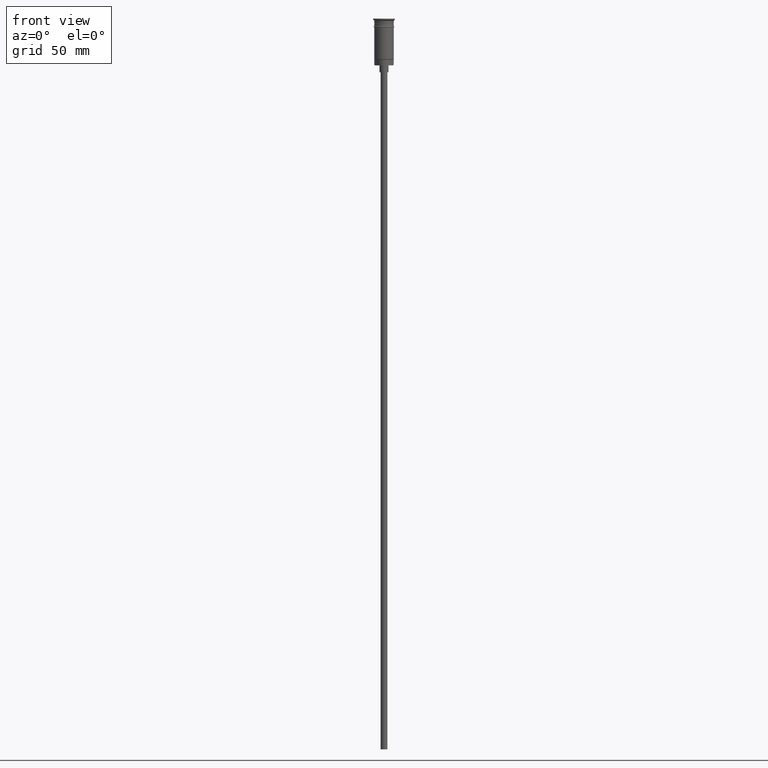
[diagram: clean part render]
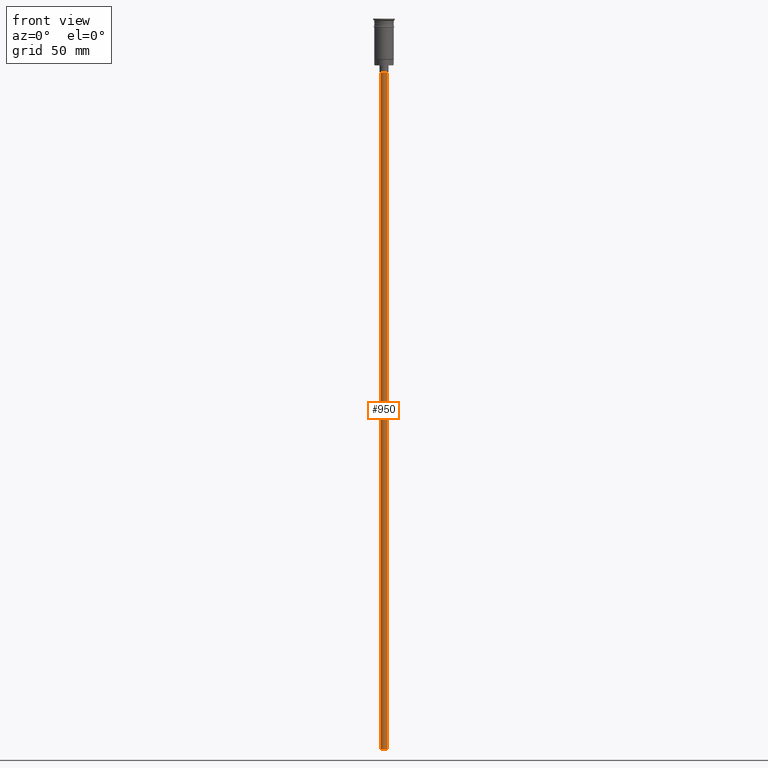
[diagram: same view with one face highlighted and labeled with its STEP entity id]
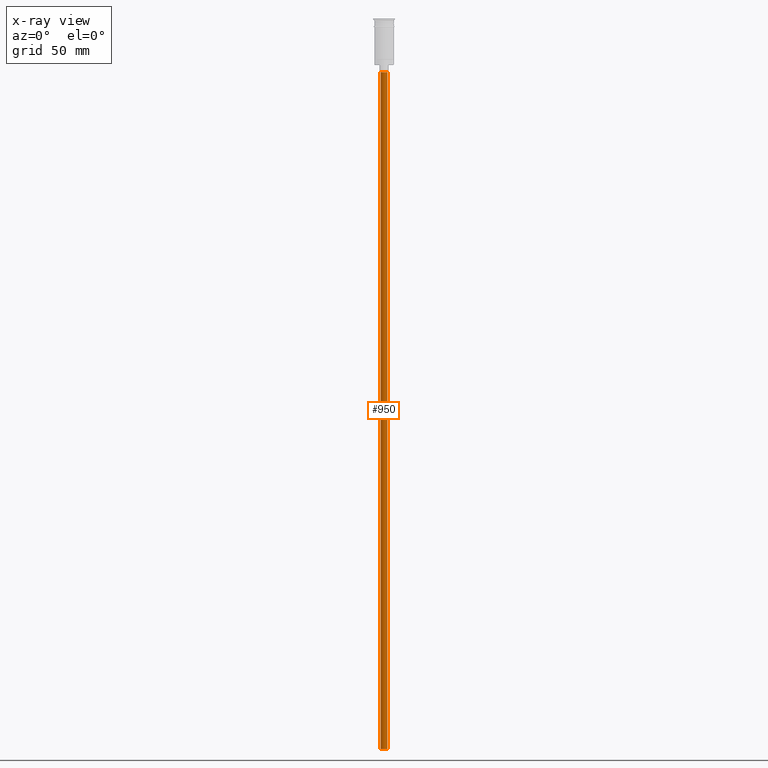
[diagram: x-ray of the same camera — body ghosted, the highlighted face saturated]
A machine part, front view. The second image highlights one B-rep face of the part: STEP entity #950.
The next image is the same camera in x-ray: the body ghosted, the highlighted face saturated — about 0% of this face is hidden behind the body in this view.
In plain terms, the highlighted cylindrical surface (edge-blend (fillet) strip) has radius 1.5 mm, axis along (-0, -0, 1).
Its self-contained STEP definition (entity closure, byte-faithful):
#15 = ORIENTED_EDGE ( 'NONE', *, *, #477, .T. ) ;
#22 = DIRECTION ( 'NONE',  ( 0.000000000000000000, 0.000000000000000000, -1.000000000000000000 ) ) ;
#168 = ORIENTED_EDGE ( 'NONE', *, *, #977, .F. ) ;
#190 = DIRECTION ( 'NONE',  ( -0.000000000000000000, -0.000000000000000000, 1.000000000000000000 ) ) ;
#200 = ORIENTED_EDGE ( 'NONE', *, *, #1486, .F. ) ;
#280 = EDGE_CURVE ( 'NONE', #1414, #832, #306, .T. ) ;
#306 = LINE ( 'NONE', #804, #815 ) ;
#441 = DIRECTION ( 'NONE',  ( 0.000000000000000000, 0.000000000000000000, -1.000000000000000000 ) ) ;
#462 = DIRECTION ( 'NONE',  ( -1.000000000000000000, 0.000000000000000000, 0.000000000000000000 ) ) ;
#477 = EDGE_CURVE ( 'NONE', #832, #1004, #1490, .T. ) ;
#527 = VECTOR ( 'NONE', #1343, 1000.000000000000000 ) ;
#542 = DIRECTION ( 'NONE',  ( 1.000000000000000000, 0.000000000000000000, 0.000000000000000000 ) ) ;
#596 = CARTESIAN_POINT ( 'NONE',  ( -1.500000000000000222, 1.836970198721030181E-16, -23.49999999999999645 ) ) ;
#605 = CIRCLE ( 'NONE', #1129, 1.500000000000000222 ) ;
#626 = CARTESIAN_POINT ( 'NONE',  ( 1.500000000000000222, 0.000000000000000000, -320.5000000000000000 ) ) ;
#683 = FACE_OUTER_BOUND ( 'NONE', #1410, .T. ) ;
#733 = LINE ( 'NONE', #1097, #527 ) ;
#804 = CARTESIAN_POINT ( 'NONE',  ( 1.500000000000000222, 0.000000000000000000, -320.5000000000000000 ) ) ;
#807 = CYLINDRICAL_SURFACE ( 'NONE', #1535, 1.500000000000000222 ) ;
#815 = VECTOR ( 'NONE', #190, 1000.000000000000000 ) ;
#832 = VERTEX_POINT ( 'NONE', #1106 ) ;
#950 = ADVANCED_FACE ( 'NONE', ( #683 ), #807, .T. ) ;
#977 = EDGE_CURVE ( 'NONE', #1414, #1121, #605, .T. ) ;
#1004 = VERTEX_POINT ( 'NONE', #596 ) ;
#1037 = CARTESIAN_POINT ( 'NONE',  ( 0.000000000000000000, 0.000000000000000000, -320.5000000000000000 ) ) ;
#1066 = CARTESIAN_POINT ( 'NONE',  ( 0.000000000000000000, 0.000000000000000000, -320.5000000000000000 ) ) ;
#1097 = CARTESIAN_POINT ( 'NONE',  ( -1.500000000000000222, 1.836970198721030181E-16, -320.5000000000000000 ) ) ;
#1106 = CARTESIAN_POINT ( 'NONE',  ( 1.500000000000000222, 0.000000000000000000, -23.49999999999999645 ) ) ;
#1121 = VERTEX_POINT ( 'NONE', #1279 ) ;
#1129 = AXIS2_PLACEMENT_3D ( 'NONE', #1066, #441, #462 ) ;
#1136 = CARTESIAN_POINT ( 'NONE',  ( 0.000000000000000000, 0.000000000000000000, -23.49999999999999645 ) ) ;
#1279 = CARTESIAN_POINT ( 'NONE',  ( -1.500000000000000222, 1.836970198721030181E-16, -320.5000000000000000 ) ) ;
#1292 = DIRECTION ( 'NONE',  ( -1.000000000000000000, 0.000000000000000000, 0.000000000000000000 ) ) ;
#1297 = AXIS2_PLACEMENT_3D ( 'NONE', #1136, #22, #1292 ) ;
#1313 = DIRECTION ( 'NONE',  ( -0.000000000000000000, -0.000000000000000000, 1.000000000000000000 ) ) ;
#1343 = DIRECTION ( 'NONE',  ( -0.000000000000000000, -0.000000000000000000, 1.000000000000000000 ) ) ;
#1382 = ORIENTED_EDGE ( 'NONE', *, *, #280, .T. ) ;
#1410 = EDGE_LOOP ( 'NONE', ( #200, #168, #1382, #15 ) ) ;
#1414 = VERTEX_POINT ( 'NONE', #626 ) ;
#1486 = EDGE_CURVE ( 'NONE', #1121, #1004, #733, .T. ) ;
#1490 = CIRCLE ( 'NONE', #1297, 1.500000000000000222 ) ;
#1535 = AXIS2_PLACEMENT_3D ( 'NONE', #1037, #1313, #542 ) ;